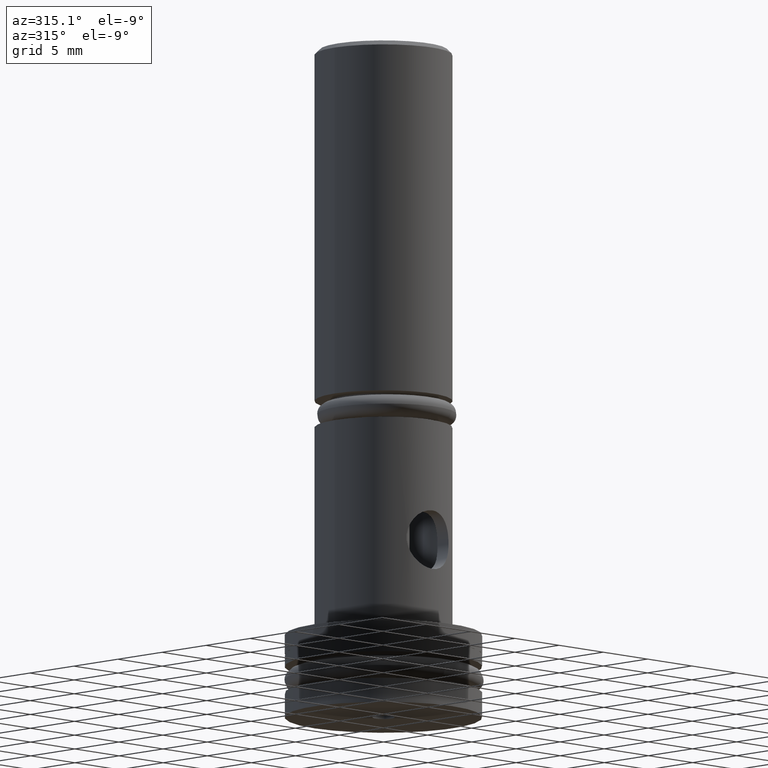
[diagram: clean part render]
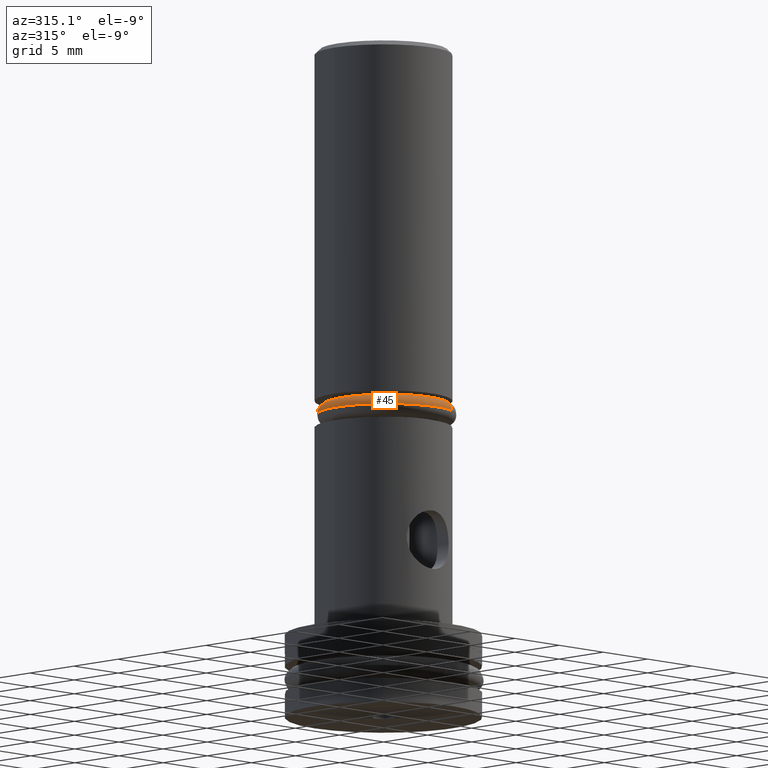
[diagram: same view with one face highlighted and labeled with its STEP entity id]
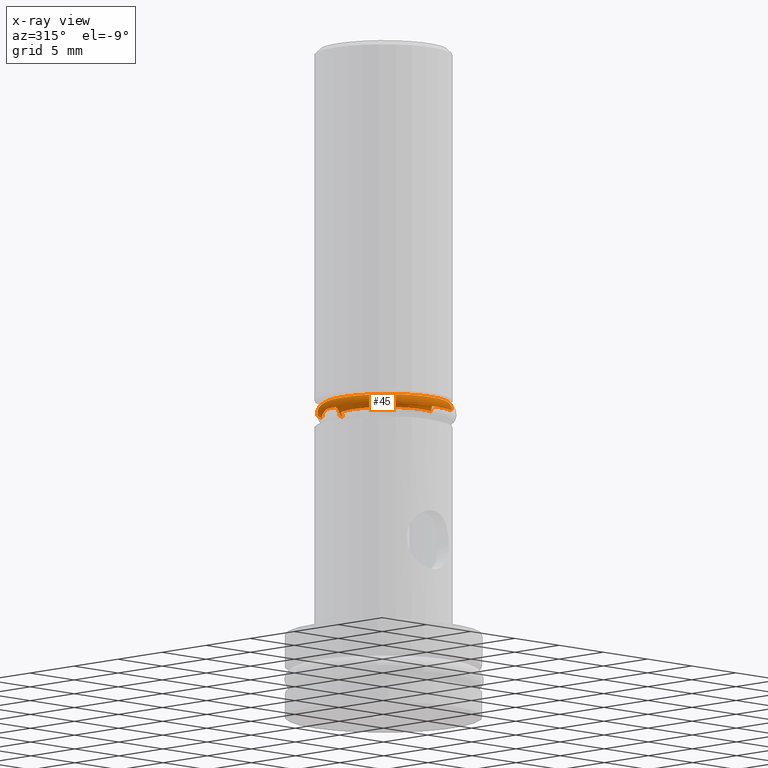
[diagram: x-ray of the same camera — body ghosted, the highlighted face saturated]
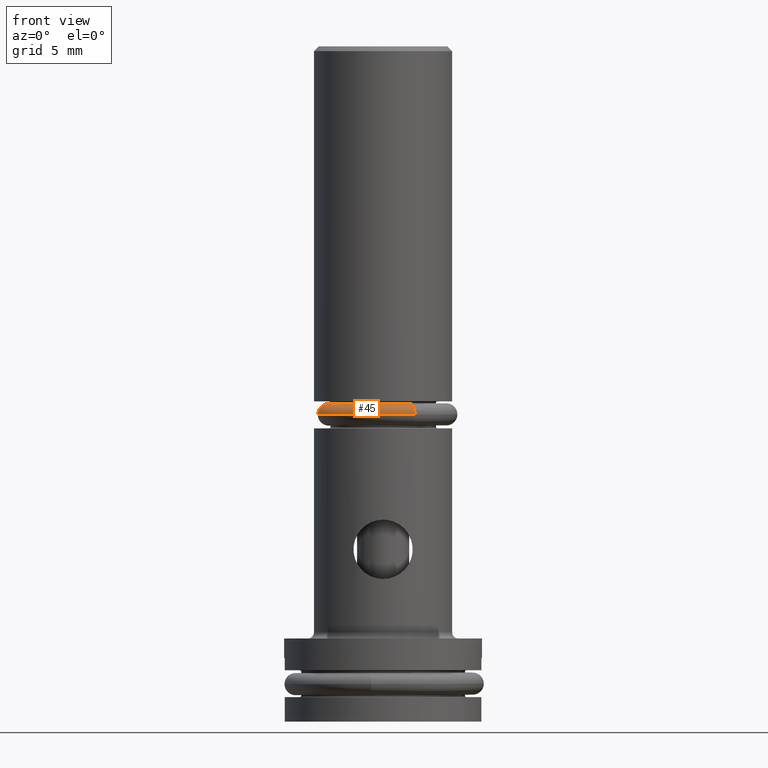
[diagram: same view with one face highlighted and labeled with its STEP entity id]
A machine part, auxiliary view. The second image highlights one B-rep face of the part: STEP entity #45.
The next image is the same camera in x-ray: the body ghosted, the highlighted face saturated — about 0% of this face is hidden behind the body in this view.
A second angle (front view) of the same face is appended — the face is thin or edge-on in the first view.
In plain terms, the highlighted toroidal blend (fillet) surface has major radius 4.7117 mm and minor (blend) radius 0.889 mm.
Its self-contained STEP definition (entity closure, byte-faithful):
#45 = ADVANCED_FACE ( 'NONE', ( #135 ), #142, .T. ) ;
#135 = FACE_OUTER_BOUND ( 'NONE', #1618, .T. ) ;
#142 = TOROIDAL_SURFACE ( 'NONE', #1824, 0.1855000000000001400, 0.03499999999999999600 ) ;
#441 = CARTESIAN_POINT ( 'NONE',  ( -6.506047128798598700E-036, -4.286263797015735200E-018, 1.812398843022466400E-035 ) ) ;
#442 = DIRECTION ( 'NONE',  ( 1.517883041479706200E-018, 1.000000000000000000, -4.228388472693467300E-018 ) ) ;
#443 = DIRECTION ( 'NONE',  ( 0.0000000000000000000, 4.228388472693466500E-018, 1.000000000000000000 ) ) ;
#464 = CARTESIAN_POINT ( 'NONE',  ( -6.006638218972598600E-017, -8.044780119842448600E-019, 0.1855000000000004100 ) ) ;
#465 = DIRECTION ( 'NONE',  ( -1.000000000000000000, 1.517883041479704900E-018, -3.238079902411097100E-016 ) ) ;
#466 = DIRECTION ( 'NONE',  ( -3.238079902411095100E-016, 0.0000000000000000000, 1.000000000000000000 ) ) ;
#776 = VERTEX_POINT ( 'NONE', #2169 ) ;
#801 = VERTEX_POINT ( 'NONE', #2185 ) ;
#812 = VERTEX_POINT ( 'NONE', #2188 ) ;
#833 = VERTEX_POINT ( 'NONE', #2203 ) ;
#850 = EDGE_CURVE ( 'NONE', #801, #833, #1339, .T. ) ;
#1148 = EDGE_CURVE ( 'NONE', #833, #776, #1351, .T. ) ;
#1339 = CIRCLE ( 'NONE', #1859, 0.2205000000000001400 ) ;
#1351 = CIRCLE ( 'NONE', #1864, 0.03500000000000000300 ) ;
#1429 = CIRCLE ( 'NONE', #1900, 0.1505000000000001300 ) ;
#1438 = CIRCLE ( 'NONE', #1907, 0.03500000000000000300 ) ;
#1560 = EDGE_CURVE ( 'NONE', #812, #776, #1429, .T. ) ;
#1568 = EDGE_CURVE ( 'NONE', #801, #812, #1438, .T. ) ;
#1618 = EDGE_LOOP ( 'NONE', ( #1629, #1626, #1625, #1627 ) ) ;
#1625 = ORIENTED_EDGE ( 'NONE', *, *, #1148, .T. ) ;
#1626 = ORIENTED_EDGE ( 'NONE', *, *, #850, .T. ) ;
#1627 = ORIENTED_EDGE ( 'NONE', *, *, #1560, .F. ) ;
#1629 = ORIENTED_EDGE ( 'NONE', *, *, #1568, .F. ) ;
#1824 = AXIS2_PLACEMENT_3D ( 'NONE', #2019, #2020, #2021 ) ;
#1859 = AXIS2_PLACEMENT_3D ( 'NONE', #2252, #2253, #2254 ) ;
#1864 = AXIS2_PLACEMENT_3D ( 'NONE', #2275, #2276, #2277 ) ;
#1900 = AXIS2_PLACEMENT_3D ( 'NONE', #441, #442, #443 ) ;
#1907 = AXIS2_PLACEMENT_3D ( 'NONE', #464, #465, #466 ) ;
#2019 = CARTESIAN_POINT ( 'NONE',  ( 0.0000000000000000000, 0.0000000000000000000, 0.0000000000000000000 ) ) ;
#2020 = DIRECTION ( 'NONE',  ( 1.517883041479706200E-018, 1.000000000000000000, -4.228388472693467300E-018 ) ) ;
#2021 = DIRECTION ( 'NONE',  ( -3.238079902411096600E-016, 4.228388472693468100E-018, 1.000000000000000000 ) ) ;
#2169 = CARTESIAN_POINT ( 'NONE',  ( 6.716403685845478000E-017, -4.286263797015714400E-018, -0.1505000000000004100 ) ) ;
#2185 = CARTESIAN_POINT ( 'NONE',  ( -7.139966184816477500E-017, 9.323596582289109700E-019, 0.2205000000000002800 ) ) ;
#2188 = CARTESIAN_POINT ( 'NONE',  ( -4.873310253128711800E-017, -4.286263797015721300E-018, 0.1505000000000004100 ) ) ;
#2203 = CARTESIAN_POINT ( 'NONE',  ( 9.840312376936397000E-017, -9.323596582289109700E-019, -0.2205000000000002800 ) ) ;
#2252 = CARTESIAN_POINT ( 'NONE',  ( 0.0000000000000000000, 0.0000000000000000000, 0.0000000000000000000 ) ) ;
#2253 = DIRECTION ( 'NONE',  ( 1.517883041479706200E-018, 1.000000000000000000, -4.228388472693467300E-018 ) ) ;
#2254 = DIRECTION ( 'NONE',  ( 0.0000000000000000000, 4.228388472693467300E-018, 1.000000000000000000 ) ) ;
#2275 = CARTESIAN_POINT ( 'NONE',  ( 8.278358031390945500E-017, 8.044780119842448600E-019, -0.1855000000000004100 ) ) ;
#2276 = DIRECTION ( 'NONE',  ( 1.000000000000000000, -1.517883041479704300E-018, 4.462726701558450600E-016 ) ) ;
#2277 = DIRECTION ( 'NONE',  ( 4.462726701558450600E-016, 0.0000000000000000000, -1.000000000000000000 ) ) ;